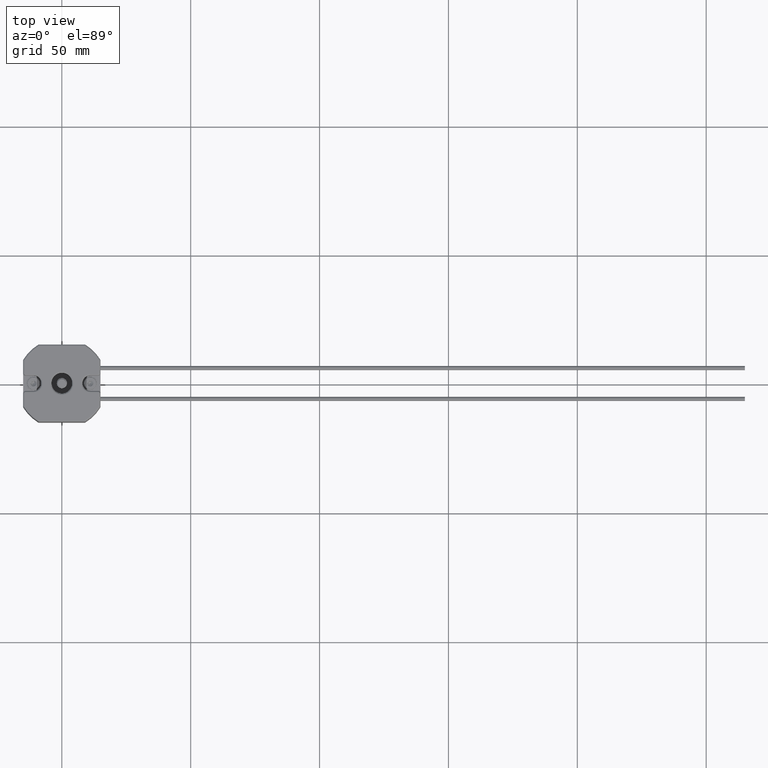
[diagram: clean part render]
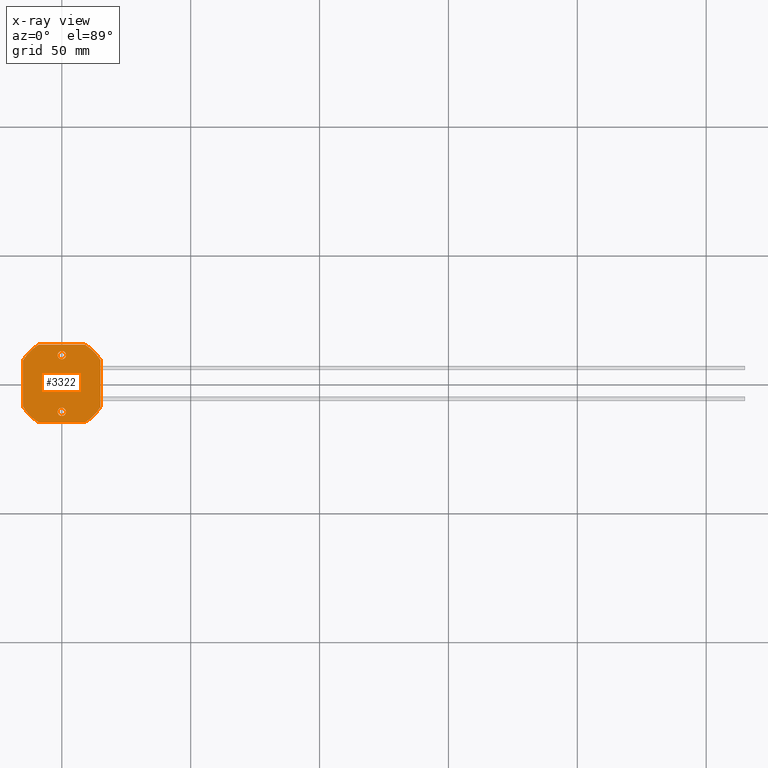
[diagram: x-ray — body ghosted, one internal face saturated and labeled with its STEP entity id]
A machine part, top view, then the same camera in x-ray: the body is ghosted and one INTERNAL B-rep face — a face not visible from any outside direction — is saturated and labeled: STEP entity #3322.
In plain terms, the highlighted planar face has unit normal (0, -0, 1).
Its self-contained STEP definition (entity closure, byte-faithful):
#338=LINE('',#6034,#504);
#342=LINE('',#6043,#508);
#346=LINE('',#6052,#512);
#350=LINE('',#6061,#516);
#504=VECTOR('',#5017,1000.);
#508=VECTOR('',#5023,1000.);
#512=VECTOR('',#5029,1000.);
#516=VECTOR('',#5035,1000.);
#611=PLANE('',#4185);
#1118=ORIENTED_EDGE('',*,*,#1812,.F.);
#1119=ORIENTED_EDGE('',*,*,#1813,.F.);
#1120=ORIENTED_EDGE('',*,*,#1805,.T.);
#1121=ORIENTED_EDGE('',*,*,#1814,.T.);
#1122=ORIENTED_EDGE('',*,*,#1809,.T.);
#1123=ORIENTED_EDGE('',*,*,#1815,.T.);
#1124=ORIENTED_EDGE('',*,*,#1797,.T.);
#1125=ORIENTED_EDGE('',*,*,#1816,.T.);
#1126=ORIENTED_EDGE('',*,*,#1801,.T.);
#1127=ORIENTED_EDGE('',*,*,#1817,.T.);
#1797=EDGE_CURVE('',#2172,#2170,#338,.T.);
#1801=EDGE_CURVE('',#2176,#2174,#342,.T.);
#1805=EDGE_CURVE('',#2180,#2178,#346,.T.);
#1809=EDGE_CURVE('',#2184,#2182,#350,.T.);
#1812=EDGE_CURVE('',#2186,#2186,#2458,.T.);
#1813=EDGE_CURVE('',#2187,#2187,#2459,.T.);
#1814=EDGE_CURVE('',#2178,#2184,#2460,.T.);
#1815=EDGE_CURVE('',#2182,#2172,#2461,.T.);
#1816=EDGE_CURVE('',#2170,#2176,#2462,.T.);
#1817=EDGE_CURVE('',#2174,#2180,#2463,.T.);
#2170=VERTEX_POINT('',#6032);
#2172=VERTEX_POINT('',#6035);
#2174=VERTEX_POINT('',#6041);
#2176=VERTEX_POINT('',#6044);
#2178=VERTEX_POINT('',#6050);
#2180=VERTEX_POINT('',#6053);
#2182=VERTEX_POINT('',#6059);
#2184=VERTEX_POINT('',#6062);
#2186=VERTEX_POINT('',#6068);
#2187=VERTEX_POINT('',#6070);
#2458=CIRCLE('',#4186,1.6);
#2459=CIRCLE('',#4187,1.6);
#2460=CIRCLE('',#4188,17.5);
#2461=CIRCLE('',#4189,17.5);
#2462=CIRCLE('',#4190,17.5);
#2463=CIRCLE('',#4191,17.5);
#2690=EDGE_LOOP('',(#1118));
#2691=EDGE_LOOP('',(#1119));
#2692=EDGE_LOOP('',(#1120,#1121,#1122,#1123,#1124,#1125,#1126,#1127));
#2967=FACE_BOUND('',#2690,.T.);
#2968=FACE_BOUND('',#2691,.T.);
#2969=FACE_BOUND('',#2692,.T.);
#3322=ADVANCED_FACE('',(#2967,#2968,#2969),#611,.T.);
#4185=AXIS2_PLACEMENT_3D('',#6066,#5038,#5039);
#4186=AXIS2_PLACEMENT_3D('',#6067,#5040,#5041);
#4187=AXIS2_PLACEMENT_3D('',#6069,#5042,#5043);
#4188=AXIS2_PLACEMENT_3D('',#6071,#5044,#5045);
#4189=AXIS2_PLACEMENT_3D('',#6072,#5046,#5047);
#4190=AXIS2_PLACEMENT_3D('',#6073,#5048,#5049);
#4191=AXIS2_PLACEMENT_3D('',#6074,#5050,#5051);
#5017=DIRECTION('',(0.,-1.,0.));
#5023=DIRECTION('',(1.,5.78241158658936E-17,0.));
#5029=DIRECTION('',(0.,1.,0.));
#5035=DIRECTION('',(-1.,5.78241158658936E-17,0.));
#5038=DIRECTION('',(0.,0.,1.));
#5039=DIRECTION('',(1.,0.,0.));
#5040=DIRECTION('',(0.,0.,1.));
#5041=DIRECTION('',(1.,0.,0.));
#5042=DIRECTION('',(0.,0.,1.));
#5043=DIRECTION('',(1.,0.,0.));
#5044=DIRECTION('',(0.,0.,1.));
#5045=DIRECTION('',(1.,0.,0.));
#5046=DIRECTION('',(0.,0.,1.));
#5047=DIRECTION('',(1.,0.,0.));
#5048=DIRECTION('',(0.,0.,1.));
#5049=DIRECTION('',(1.,0.,0.));
#5050=DIRECTION('',(0.,0.,1.));
#5051=DIRECTION('',(1.,0.,0.));
#6032=CARTESIAN_POINT('',(-15.,-9.01387818866,0.449999999999999));
#6034=CARTESIAN_POINT('',(-15.,15.,0.45));
#6035=CARTESIAN_POINT('',(-15.,9.01387818866,0.449999999999999));
#6041=CARTESIAN_POINT('',(9.01387818865998,-15.,0.449999999999999));
#6043=CARTESIAN_POINT('',(-15.,-15.,0.45));
#6044=CARTESIAN_POINT('',(-9.01387818865998,-15.,0.449999999999999));
#6050=CARTESIAN_POINT('',(15.,9.01387818865997,0.449999999999999));
#6052=CARTESIAN_POINT('',(15.,-15.,0.45));
#6053=CARTESIAN_POINT('',(15.,-9.01387818865997,0.449999999999999));
#6059=CARTESIAN_POINT('',(-9.01387818865997,15.,0.449999999999999));
#6061=CARTESIAN_POINT('',(15.,15.,0.45));
#6062=CARTESIAN_POINT('',(9.01387818865997,15.,0.449999999999999));
#6066=CARTESIAN_POINT('',(-15.,-15.,0.45));
#6067=CARTESIAN_POINT('',(-11.,0.,0.449999999999999));
#6068=CARTESIAN_POINT('',(-9.4,0.,0.449999999999999));
#6069=CARTESIAN_POINT('',(11.,-1.34706698920461E-15,0.449999999999999));
#6070=CARTESIAN_POINT('',(12.6,-1.34706698920461E-15,0.449999999999999));
#6071=CARTESIAN_POINT('',(0.,0.,0.449999999999999));
#6072=CARTESIAN_POINT('',(0.,0.,0.449999999999999));
#6073=CARTESIAN_POINT('',(0.,0.,0.449999999999999));
#6074=CARTESIAN_POINT('',(0.,0.,0.449999999999999));